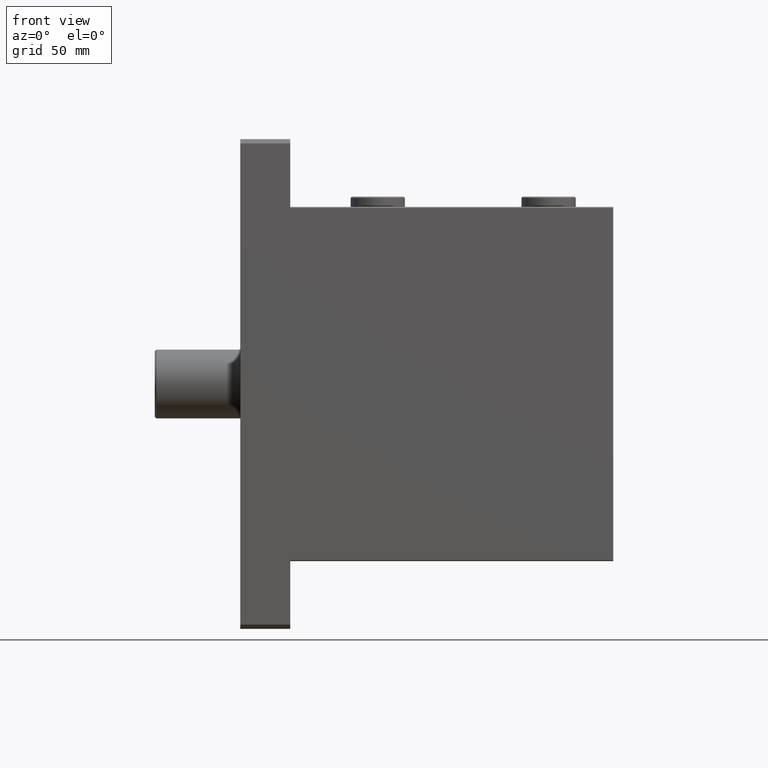
[diagram: clean part render]
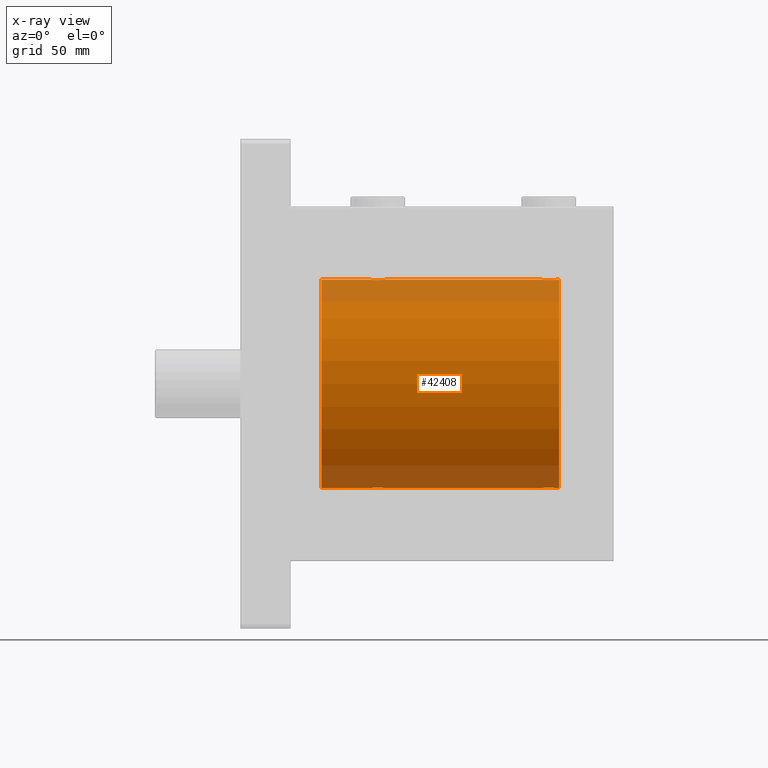
[diagram: x-ray — body ghosted, one internal face saturated and labeled with its STEP entity id]
A machine part, front view, then the same camera in x-ray: the body is ghosted and one INTERNAL B-rep face — a face not visible from any outside direction — is saturated and labeled: STEP entity #42408.
In plain terms, the highlighted cylindrical surface (partial cylindrical patch) has radius 50 mm, axis along (-1, -0, -0).
Its self-contained STEP definition (entity closure, byte-faithful):
#100 = CARTESIAN_POINT ( 'NONE',  ( 46.25000000000000000, 5.695507803017738218E-16, 50.00000000000000000 ) ) ;
#208 = CARTESIAN_POINT ( 'NONE',  ( 121.4068727911404437, -3.378657745070632767, 49.88595615988429444 ) ) ;
#453 = CARTESIAN_POINT ( 'NONE',  ( 127.6860283212194958, -2.133925816755182225, 49.95498245321556396 ) ) ;
#619 = CARTESIAN_POINT ( 'NONE',  ( 46.03272642097311973, -1.369753890039645983, -49.98188917176553048 ) ) ;
#652 = CARTESIAN_POINT ( 'NONE',  ( 126.8115306651541658, -3.199146701881681487, -49.89793607725462010 ) ) ;
#686 = CARTESIAN_POINT ( 'NONE',  ( 123.4400213230435099, -4.222042462213122072, 49.82145436824654183 ) ) ;
#854 = CARTESIAN_POINT ( 'NONE',  ( 39.41179785323799933, -3.382416624899781787, -49.88570010427956447 ) ) ;
#886 = CARTESIAN_POINT ( 'NONE',  ( 127.3788171726373548, -2.593114840406129940, -49.93325460257641168 ) ) ;
#1006 = B_SPLINE_CURVE_WITH_KNOTS ( 'NONE', 3,
 ( #22030, #15021, #30275, #33191, #22499, #44854, #25907, #36835, #41457, #18883, #208, #7979, #26629, #48006, #26387, #686, #37316, #15497, #44377, #3618, #30035, #22267, #15258, #33677, #40724, #3850, #11137, #453, #45092, #41206, #8224, #18401, #37800, #22752 ),
 .UNSPECIFIED., .F., .F.,
 ( 4, 2, 2, 2, 2, 2, 2, 2, 2, 2, 2, 2, 2, 2, 2, 2, 4 ),
 ( 0.01329343152928749543, 0.01412407817529626013, 0.01495472482130502483, 0.01578537146731378779, 0.01661601811332255249, 0.01744666475933131719, 0.01827731140534008189, 0.01910795805134884659, 0.01993860469735761129, 0.02076925134336637599, 0.02159989798937517885, 0.02243054463538398519, 0.02326119128139279152, 0.02409183792740159785, 0.02492248457341040419, 0.02575313121941921052, 0.02658377786542801685 ),
 .UNSPECIFIED. ) ;
#1829 = CARTESIAN_POINT ( 'NONE',  ( 129.0000000000000000, 0.000000000000000000, 50.00000000000000000 ) ) ;
#2035 = ORIENTED_EDGE ( 'NONE', *, *, #17101, .T. ) ;
#2095 = VERTEX_POINT ( 'NONE', #4279 ) ;
#2658 = ORIENTED_EDGE ( 'NONE', *, *, #44126, .F. ) ;
#2851 = CARTESIAN_POINT ( 'NONE',  ( 37.88568086693992143, -1.101350136471744845, 49.98862054280448319 ) ) ;
#3002 = EDGE_CURVE ( 'NONE', #2095, #11244, #23527, .T. ) ;
#3143 = CARTESIAN_POINT ( 'NONE',  ( 15.00000000000000000, 0.000000000000000000, 50.00000000000000000 ) ) ;
#3329 = CARTESIAN_POINT ( 'NONE',  ( 46.25000000000000000, 5.695507803017738218E-16, 50.00000000000000000 ) ) ;
#3549 = CARTESIAN_POINT ( 'NONE',  ( 38.31397167878049714, -2.133925816755183114, -49.95498245321557818 ) ) ;
#3567 = CARTESIAN_POINT ( 'NONE',  ( 38.31062844320614147, -2.128188802142369163, 49.95522967821975158 ) ) ;
#3618 = CARTESIAN_POINT ( 'NONE',  ( 125.0973761787903555, -4.115209769591107403, 49.83039196709103891 ) ) ;
#3816 = CARTESIAN_POINT ( 'NONE',  ( 120.6248001591803387, -2.597781786597479936, -49.93300953359122474 ) ) ;
#3850 = CARTESIAN_POINT ( 'NONE',  ( 127.1992192796128336, -2.811461347331102534, 49.92127983148852621 ) ) ;
#4026 = CARTESIAN_POINT ( 'NONE',  ( 40.63289352445426772, -4.033756670430848068, -49.83713703490974467 ) ) ;
#4279 = CARTESIAN_POINT ( 'NONE',  ( 119.7499999999999858, -1.552464266337571260E-14, -50.00000000000000000 ) ) ;
#4309 = CARTESIAN_POINT ( 'NONE',  ( 119.7775736447921986, -0.5587117664567315956, -49.99763378604802000 ) ) ;
#4511 = CARTESIAN_POINT ( 'NONE',  ( 46.25000000000000000, 6.123233970928580774E-15, -50.00000000000000000 ) ) ;
#4544 = CARTESIAN_POINT ( 'NONE',  ( 120.8007807203871522, -2.811461347331123406, -49.92127983148851200 ) ) ;
#4784 = CARTESIAN_POINT ( 'NONE',  ( 124.5599786769564474, -4.222042462213132730, -49.82145436824653473 ) ) ;
#4848 = CARTESIAN_POINT ( 'NONE',  ( 15.00000000000000000, 6.123233995736766085E-15, -50.00000000000000000 ) ) ;
#5118 = DIRECTION ( 'NONE',  ( -1.000000000000000000, -0.000000000000000000, -0.000000000000000000 ) ) ;
#5222 = VERTEX_POINT ( 'NONE', #11470 ) ;
#6249 = CARTESIAN_POINT ( 'NONE',  ( 43.88217049484443777, -3.820681512513388611, 49.85392475515401145 ) ) ;
#6284 = DIRECTION ( 'NONE',  ( -1.000000000000000000, 0.000000000000000000, 0.000000000000000000 ) ) ;
#6397 = VECTOR ( 'NONE', #14324, 1000.000000000000000 ) ;
#6496 = CARTESIAN_POINT ( 'NONE',  ( 43.36710647554575360, -4.033756670430856062, 49.83713703490974467 ) ) ;
#6564 = CARTESIAN_POINT ( 'NONE',  ( 129.0000000000000000, 6.123233995736766085E-15, -50.00000000000000000 ) ) ;
#6612 = AXIS2_PLACEMENT_3D ( 'NONE', #34684, #46815, #20593 ) ;
#7192 = CARTESIAN_POINT ( 'NONE',  ( 38.80078072038717352, -2.811461347331107419, -49.92127983148852621 ) ) ;
#7473 = CIRCLE ( 'NONE', #25255, 50.00000000000000000 ) ;
#7522 = CARTESIAN_POINT ( 'NONE',  ( 128.2499999999999716, 4.902412868109812945E-15, 50.00000000000000000 ) ) ;
#7617 = EDGE_CURVE ( 'NONE', #10814, #37933, #1006, .T. ) ;
#7666 = CARTESIAN_POINT ( 'NONE',  ( 39.87368355124922203, -3.690299572754720980, -49.86386974736159772 ) ) ;
#7945 = CARTESIAN_POINT ( 'NONE',  ( 125.1032329603421545, -4.113647494206490229, -49.83052139214891696 ) ) ;
#7979 = CARTESIAN_POINT ( 'NONE',  ( 121.8686360055384768, -3.687400765141539249, 49.86408552998300081 ) ) ;
#8188 = CARTESIAN_POINT ( 'NONE',  ( 127.2030356195199232, -2.807099414226285727, -49.92152599098507437 ) ) ;
#8224 = CARTESIAN_POINT ( 'NONE',  ( 128.1124970108033096, -1.108337267831486006, 49.98846998601263181 ) ) ;
#9758 = EDGE_CURVE ( 'NONE', #47364, #37933, #33044, .T. ) ;
#10135 = CARTESIAN_POINT ( 'NONE',  ( 45.81839248987871827, -1.886522330773423572, 49.96505190380066352 ) ) ;
#10375 = CARTESIAN_POINT ( 'NONE',  ( 42.55408564880149669, -4.222816005855214883, 49.82138837911247009 ) ) ;
#10609 = CARTESIAN_POINT ( 'NONE',  ( 45.68602832121950286, -2.133925816755187110, 49.95498245321557818 ) ) ;
#10814 = VERTEX_POINT ( 'NONE', #28927 ) ;
#11137 = CARTESIAN_POINT ( 'NONE',  ( 127.3751998408196329, -2.597781786597467057, 49.93300953359122474 ) ) ;
#11244 = VERTEX_POINT ( 'NONE', #46298 ) ;
#11307 = CARTESIAN_POINT ( 'NONE',  ( 41.44591435119853173, -4.222816005855206001, -49.82138837911246299 ) ) ;
#11339 = CARTESIAN_POINT ( 'NONE',  ( 119.7499999999999858, -1.552464266337571260E-14, -50.00000000000000000 ) ) ;
#11470 = CARTESIAN_POINT ( 'NONE',  ( 37.75000000000000711, -7.073857814331912646E-15, -50.00000000000000000 ) ) ;
#11515 = DIRECTION ( 'NONE',  ( 0.000000000000000000, 0.000000000000000000, 1.000000000000000000 ) ) ;
#11789 = CARTESIAN_POINT ( 'NONE',  ( 42.28395287026698668, -4.249777379711400904, -49.81906655360197789 ) ) ;
#12059 = CARTESIAN_POINT ( 'NONE',  ( 119.9692020384465678, -1.375411031076060997, -49.98173289062309976 ) ) ;
#12501 = VECTOR ( 'NONE', #20023, 1000.000000000000000 ) ;
#12526 = LINE ( 'NONE', #1829, #12501 ) ;
#13537 = CARTESIAN_POINT ( 'NONE',  ( 37.75000000000001421, -0.2773743941468532759, 50.00000000000000711 ) ) ;
#13807 = DIRECTION ( 'NONE',  ( 0.000000000000000000, 0.000000000000000000, 1.000000000000000000 ) ) ;
#14016 = CARTESIAN_POINT ( 'NONE',  ( 46.03079796155342507, -1.375411031076046786, 49.98173289062309976 ) ) ;
#14260 = CARTESIAN_POINT ( 'NONE',  ( 43.09737617879038396, -4.115209769591117173, 49.83039196709102470 ) ) ;
#14324 = DIRECTION ( 'NONE',  ( -1.000000000000000000, -0.000000000000000000, -0.000000000000000000 ) ) ;
#14458 = LINE ( 'NONE', #17598, #30792 ) ;
#14714 = CARTESIAN_POINT ( 'NONE',  ( 37.77757364479220570, -0.5587117664567219366, -49.99763378604802000 ) ) ;
#14954 = CARTESIAN_POINT ( 'NONE',  ( 44.13136399446156588, -3.687400765141522818, -49.86408552998298660 ) ) ;
#14986 = CARTESIAN_POINT ( 'NONE',  ( 123.4459143511985246, -4.222816005855221100, -49.82138837911247009 ) ) ;
#15021 = CARTESIAN_POINT ( 'NONE',  ( 119.7500000000000000, -0.2773743941468521657, 50.00000000000001421 ) ) ;
#15258 = CARTESIAN_POINT ( 'NONE',  ( 126.1263164487507709, -3.690299572754721869, 49.86386974736159061 ) ) ;
#15426 = CARTESIAN_POINT ( 'NONE',  ( 44.59312720885956338, -3.378657745070617224, -49.88595615988430154 ) ) ;
#15460 = CARTESIAN_POINT ( 'NONE',  ( 127.6893715567938585, -2.128188802142362945, -49.95522967821975158 ) ) ;
#15497 = CARTESIAN_POINT ( 'NONE',  ( 124.2772492703791727, -4.250219976861645321, 49.81902879621014790 ) ) ;
#15694 = CARTESIAN_POINT ( 'NONE',  ( 119.7499999999999858, -0.2808785465865775155, -50.00000000000001421 ) ) ;
#16358 = EDGE_CURVE ( 'NONE', #5222, #21201, #21806, .T. ) ;
#16812 = CARTESIAN_POINT ( 'NONE',  ( 129.0000000000000000, 6.123233995736766085E-15, -50.00000000000000000 ) ) ;
#17101 = EDGE_CURVE ( 'NONE', #21201, #32330, #35854, .T. ) ;
#17598 = CARTESIAN_POINT ( 'NONE',  ( 129.0000000000000000, 0.000000000000000000, 50.00000000000000000 ) ) ;
#17875 = CARTESIAN_POINT ( 'NONE',  ( 39.40687279114045083, -3.378657745070629659, 49.88595615988430154 ) ) ;
#18018 = AXIS2_PLACEMENT_3D ( 'NONE', #29223, #44033, #11515 ) ;
#18339 = CARTESIAN_POINT ( 'NONE',  ( 38.18160751012128884, -1.886522330773416911, -49.96505190380066352 ) ) ;
#18401 = CARTESIAN_POINT ( 'NONE',  ( 128.2224263552077730, -0.5587117664567089470, 49.99763378604803421 ) ) ;
#18569 = CARTESIAN_POINT ( 'NONE',  ( 45.82100581985226739, -1.881229021238118859, -49.96525240872482954 ) ) ;
#18603 = CARTESIAN_POINT ( 'NONE',  ( 119.8875029891966335, -1.108337267831507766, -49.98846998601261760 ) ) ;
#18814 = CARTESIAN_POINT ( 'NONE',  ( 46.11431913306007857, -1.101350136471736629, -49.98862054280448319 ) ) ;
#18883 = CARTESIAN_POINT ( 'NONE',  ( 121.1884693348457915, -3.199146701881667276, 49.89793607725462010 ) ) ;
#19292 = CARTESIAN_POINT ( 'NONE',  ( 45.68937155679385853, -2.128188802142358949, -49.95522967821975158 ) ) ;
#19328 = CARTESIAN_POINT ( 'NONE',  ( 120.3139716787804758, -2.133925816755196880, -49.95498245321555686 ) ) ;
#19560 = CARTESIAN_POINT ( 'NONE',  ( 124.2839528702669725, -4.249777379711414227, -49.81906655360197789 ) ) ;
#19584 = VECTOR ( 'NONE', #29926, 1000.000000000000000 ) ;
#20023 = DIRECTION ( 'NONE',  ( -1.000000000000000000, -0.000000000000000000, -0.000000000000000000 ) ) ;
#20154 = EDGE_LOOP ( 'NONE', ( #2658, #40343, #25957, #28978, #45268, #36498, #2035, #30746, #40815, #30920, #34795, #20714 ) ) ;
#20593 = DIRECTION ( 'NONE',  ( 0.000000000000000000, 0.000000000000000000, 1.000000000000000000 ) ) ;
#20714 = ORIENTED_EDGE ( 'NONE', *, *, #9758, .F. ) ;
#21201 = VERTEX_POINT ( 'NONE', #4848 ) ;
#21744 = CARTESIAN_POINT ( 'NONE',  ( 40.11255260607201478, -3.818052230167724215, 49.85412671291930309 ) ) ;
#21806 = LINE ( 'NONE', #6564, #6397 ) ;
#21966 = CARTESIAN_POINT ( 'NONE',  ( 38.62480015918034582, -2.597781786597465725, -49.93300953359122474 ) ) ;
#22030 = CARTESIAN_POINT ( 'NONE',  ( 119.7500000000000000, -2.480297015150644268E-23, 50.00000000000000000 ) ) ;
#22267 = CARTESIAN_POINT ( 'NONE',  ( 125.8821704948444022, -3.820681512513372624, 49.85392475515399724 ) ) ;
#22499 = CARTESIAN_POINT ( 'NONE',  ( 119.9672735790268376, -1.369753890039655975, 49.98188917176552337 ) ) ;
#22714 = CARTESIAN_POINT ( 'NONE',  ( 121.8736835512492149, -3.690299572754727642, -49.86386974736159772 ) ) ;
#22752 = CARTESIAN_POINT ( 'NONE',  ( 128.2499999999999716, 4.902412868109812945E-15, 50.00000000000000000 ) ) ;
#22953 = CARTESIAN_POINT ( 'NONE',  ( 122.6328935244542606, -4.033756670430865832, -49.83713703490974467 ) ) ;
#23189 = CARTESIAN_POINT ( 'NONE',  ( 126.1313639944615659, -3.687400765141528591, -49.86408552998298660 ) ) ;
#23527 = LINE ( 'NONE', #38333, #27730 ) ;
#24658 = CARTESIAN_POINT ( 'NONE',  ( 46.25000000000001421, -0.2808785465865648034, 50.00000000000001421 ) ) ;
#25152 = CARTESIAN_POINT ( 'NONE',  ( 44.80697831839309941, -3.203153387937326180, 49.89767833571684719 ) ) ;
#25255 = AXIS2_PLACEMENT_3D ( 'NONE', #39503, #6284, #13807 ) ;
#25385 = CARTESIAN_POINT ( 'NONE',  ( 46.22242635520780851, -0.5587117664567118336, 49.99763378604802000 ) ) ;
#25602 = CARTESIAN_POINT ( 'NONE',  ( 44.81153066515419425, -3.199146701881665500, -49.89793607725460589 ) ) ;
#25619 = CARTESIAN_POINT ( 'NONE',  ( 41.44002132304353125, -4.222042462213131842, 49.82145436824653473 ) ) ;
#25907 = CARTESIAN_POINT ( 'NONE',  ( 120.3106284432061273, -2.128188802142369163, 49.95522967821973737 ) ) ;
#25957 = ORIENTED_EDGE ( 'NONE', *, *, #33183, .T. ) ;
#26083 = CARTESIAN_POINT ( 'NONE',  ( 40.11782950515556934, -3.820681512513381506, -49.85392475515401145 ) ) ;
#26114 = CARTESIAN_POINT ( 'NONE',  ( 128.2231075279900381, -0.5531336717328986241, -49.99769193709643389 ) ) ;
#26387 = CARTESIAN_POINT ( 'NONE',  ( 122.8967670396578598, -4.113647494206484012, 49.83052139214893117 ) ) ;
#26561 = CARTESIAN_POINT ( 'NONE',  ( 46.25000000000000000, -0.2773743941468464480, -50.00000000000000711 ) ) ;
#26595 = CARTESIAN_POINT ( 'NONE',  ( 123.7227507296208415, -4.250219976861655979, -49.81902879621013369 ) ) ;
#26629 = CARTESIAN_POINT ( 'NONE',  ( 122.1125526060720148, -3.818052230167721994, 49.85412671291930309 ) ) ;
#26712 = VERTEX_POINT ( 'NONE', #31348 ) ;
#27730 = VECTOR ( 'NONE', #5118, 1000.000000000000000 ) ;
#27929 = EDGE_CURVE ( 'NONE', #26712, #28402, #43673, .T. ) ;
#28402 = VERTEX_POINT ( 'NONE', #100 ) ;
#28927 = CARTESIAN_POINT ( 'NONE',  ( 119.7500000000000000, -2.480297015150644268E-23, 50.00000000000000000 ) ) ;
#28978 = ORIENTED_EDGE ( 'NONE', *, *, #3002, .T. ) ;
#29031 = CARTESIAN_POINT ( 'NONE',  ( 45.37519984081967550, -2.597781786597470610, 49.93300953359122474 ) ) ;
#29214 = EDGE_CURVE ( 'NONE', #26712, #32330, #12526, .T. ) ;
#29223 = CARTESIAN_POINT ( 'NONE',  ( 15.00000000000000000, 0.000000000000000000, 0.000000000000000000 ) ) ;
#29268 = CARTESIAN_POINT ( 'NONE',  ( 46.11249701080335228, -1.108337267831489115, 49.98846998601261760 ) ) ;
#29444 = LINE ( 'NONE', #44267, #19584 ) ;
#29505 = CARTESIAN_POINT ( 'NONE',  ( 38.17899418014773971, -1.881229021238130183, 49.96525240872482954 ) ) ;
#29734 = CARTESIAN_POINT ( 'NONE',  ( 43.37333436579036317, -4.031616700143180410, -49.83731072121798888 ) ) ;
#29765 = CARTESIAN_POINT ( 'NONE',  ( 128.1143191330600359, -1.101350136471738850, -49.98862054280448319 ) ) ;
#29926 = DIRECTION ( 'NONE',  ( -1.000000000000000000, -0.000000000000000000, -0.000000000000000000 ) ) ;
#30035 = CARTESIAN_POINT ( 'NONE',  ( 125.3671064755457536, -4.033756670430841851, 49.83713703490973757 ) ) ;
#30210 = CARTESIAN_POINT ( 'NONE',  ( 42.55997867695648296, -4.222042462213118519, -49.82145436824653473 ) ) ;
#30239 = CARTESIAN_POINT ( 'NONE',  ( 126.5931272088595705, -3.378657745070619445, -49.88595615988430154 ) ) ;
#30275 = CARTESIAN_POINT ( 'NONE',  ( 119.7768924720099903, -0.5531336717329051744, 49.99769193709643389 ) ) ;
#30479 = CARTESIAN_POINT ( 'NONE',  ( 127.8210058198522603, -1.881229021238124632, -49.96525240872482954 ) ) ;
#30746 = ORIENTED_EDGE ( 'NONE', *, *, #29214, .F. ) ;
#30792 = VECTOR ( 'NONE', #39918, 1000.000000000000000 ) ;
#30920 = ORIENTED_EDGE ( 'NONE', *, *, #47330, .F. ) ;
#31348 = CARTESIAN_POINT ( 'NONE',  ( 37.75000000000000711, -2.480809774739037926E-23, 50.00000000000000000 ) ) ;
#31451 = EDGE_CURVE ( 'NONE', #11244, #5222, #33639, .T. ) ;
#31508 = FACE_OUTER_BOUND ( 'NONE', #20154, .T. ) ;
#31991 = CYLINDRICAL_SURFACE ( 'NONE', #6612, 50.00000000000000000 ) ;
#32189 = CARTESIAN_POINT ( 'NONE',  ( 40.89676703965783844, -4.113647494206490229, 49.83052139214891696 ) ) ;
#32330 = VERTEX_POINT ( 'NONE', #3143 ) ;
#32671 = CARTESIAN_POINT ( 'NONE',  ( 40.62666563420963683, -4.031616700143192844, 49.83731072121799599 ) ) ;
#33044 = LINE ( 'NONE', #44704, #38039 ) ;
#33129 = CARTESIAN_POINT ( 'NONE',  ( 37.96920203844656783, -1.375411031076042789, -49.98173289062309976 ) ) ;
#33146 = CARTESIAN_POINT ( 'NONE',  ( 42.27724927037917979, -4.250219976861652427, 49.81902879621013369 ) ) ;
#33183 = EDGE_CURVE ( 'NONE', #38785, #2095, #42237, .T. ) ;
#33191 = CARTESIAN_POINT ( 'NONE',  ( 119.8856808669399072, -1.101350136471743735, 49.98862054280448319 ) ) ;
#33361 = CARTESIAN_POINT ( 'NONE',  ( 45.20303561951990901, -2.807099414226270184, -49.92152599098507437 ) ) ;
#33393 = CARTESIAN_POINT ( 'NONE',  ( 128.2500000000000000, -0.2773743941468452823, -50.00000000000000711 ) ) ;
#33588 = CARTESIAN_POINT ( 'NONE',  ( 129.0000000000000000, 0.000000000000000000, 50.00000000000000000 ) ) ;
#33611 = CARTESIAN_POINT ( 'NONE',  ( 39.19302168160691480, -3.203153387937319962, -49.89767833571684719 ) ) ;
#33639 = B_SPLINE_CURVE_WITH_KNOTS ( 'NONE', 3,
 ( #4511, #26561, #36770, #18814, #619, #18569, #19292, #37251, #33361, #25602, #15426, #14954, #40412, #29734, #44556, #30210, #11789, #34085, #11307, #41386, #4026, #26083, #7666, #854, #33611, #7192, #21966, #3549, #18339, #33129, #47939, #14714, #41625, #42096 ),
 .UNSPECIFIED., .F., .F.,
 ( 4, 2, 2, 2, 2, 2, 2, 2, 2, 2, 2, 2, 2, 2, 2, 2, 4 ),
 ( 0.01329343152928756308, 0.01412407817529634686, 0.01495472482130513064, 0.01578537146731391269, 0.01661601811332269821, 0.01744666475933148025, 0.01827731140534026577, 0.01910795805134904782, 0.01993860469735782986, 0.02076925134336661538, 0.02159989798937540090, 0.02243054463538418294, 0.02326119128139296499, 0.02409183792740175051, 0.02492248457341053255, 0.02575313121941931460, 0.02658377786542810012 ),
 .UNSPECIFIED. ) ;
#33643 = CARTESIAN_POINT ( 'NONE',  ( 128.2500000000000000, 6.123233970923453178E-15, -50.00000000000000000 ) ) ;
#33677 = CARTESIAN_POINT ( 'NONE',  ( 126.5882021467620007, -3.382416624899781787, 49.88570010427956447 ) ) ;
#34085 = CARTESIAN_POINT ( 'NONE',  ( 41.72275072962083442, -4.250219976861640880, -49.81902879621014080 ) ) ;
#34684 = CARTESIAN_POINT ( 'NONE',  ( 129.0000000000000000, 0.000000000000000000, 0.000000000000000000 ) ) ;
#34795 = ORIENTED_EDGE ( 'NONE', *, *, #7617, .T. ) ;
#35854 = CIRCLE ( 'NONE', #18018, 50.00000000000000000 ) ;
#36219 = CARTESIAN_POINT ( 'NONE',  ( 128.2500000000000000, 6.123233970923453178E-15, -50.00000000000000000 ) ) ;
#36498 = ORIENTED_EDGE ( 'NONE', *, *, #16358, .T. ) ;
#36546 = CARTESIAN_POINT ( 'NONE',  ( 45.19921927961282648, -2.811461347331111416, 49.92127983148852621 ) ) ;
#36662 = EDGE_CURVE ( 'NONE', #38666, #38785, #29444, .T. ) ;
#36770 = CARTESIAN_POINT ( 'NONE',  ( 46.22310752799000966, -0.5531336717328987351, -49.99769193709643389 ) ) ;
#36835 = CARTESIAN_POINT ( 'NONE',  ( 120.6211828273626026, -2.593114840406131716, 49.93325460257638326 ) ) ;
#37033 = CARTESIAN_POINT ( 'NONE',  ( 128.0327264209731197, -1.369753890039650202, -49.98188917176553048 ) ) ;
#37251 = CARTESIAN_POINT ( 'NONE',  ( 45.37881717263736192, -2.593114840406122390, -49.93325460257641168 ) ) ;
#37316 = CARTESIAN_POINT ( 'NONE',  ( 123.7160471297329991, -4.249777379711403569, 49.81906655360197789 ) ) ;
#37531 = CARTESIAN_POINT ( 'NONE',  ( 122.1178295051555551, -3.820681512513399269, -49.85392475515401145 ) ) ;
#37767 = CARTESIAN_POINT ( 'NONE',  ( 121.1930216816068935, -3.203153387937336394, -49.89767833571684719 ) ) ;
#37800 = CARTESIAN_POINT ( 'NONE',  ( 128.2500000000000284, -0.2808785465865650810, 50.00000000000002132 ) ) ;
#37933 = VERTEX_POINT ( 'NONE', #7522 ) ;
#38000 = CARTESIAN_POINT ( 'NONE',  ( 125.3733343657903418, -4.031616700143195509, -49.83731072121799599 ) ) ;
#38039 = VECTOR ( 'NONE', #44468, 1000.000000000000000 ) ;
#38333 = CARTESIAN_POINT ( 'NONE',  ( 129.0000000000000000, 6.123233995736766085E-15, -50.00000000000000000 ) ) ;
#38666 = VERTEX_POINT ( 'NONE', #16812 ) ;
#38785 = VERTEX_POINT ( 'NONE', #36219 ) ;
#39503 = CARTESIAN_POINT ( 'NONE',  ( 129.0000000000000000, 0.000000000000000000, 0.000000000000000000 ) ) ;
#39713 = CARTESIAN_POINT ( 'NONE',  ( 39.86863600553844122, -3.687400765141535253, 49.86408552998298660 ) ) ;
#39918 = DIRECTION ( 'NONE',  ( -1.000000000000000000, -0.000000000000000000, -0.000000000000000000 ) ) ;
#40187 = CARTESIAN_POINT ( 'NONE',  ( 38.79696438048009099, -2.807099414226281731, 49.92152599098507437 ) ) ;
#40343 = ORIENTED_EDGE ( 'NONE', *, *, #36662, .T. ) ;
#40412 = CARTESIAN_POINT ( 'NONE',  ( 43.88744739392799943, -3.818052230167712668, -49.85412671291930309 ) ) ;
#40428 = CARTESIAN_POINT ( 'NONE',  ( 37.77689247201000455, -0.5531336717329051744, 49.99769193709643389 ) ) ;
#40724 = CARTESIAN_POINT ( 'NONE',  ( 126.8069783183931065, -3.203153387937318186, 49.89767833571684008 ) ) ;
#40815 = ORIENTED_EDGE ( 'NONE', *, *, #27929, .T. ) ;
#41206 = CARTESIAN_POINT ( 'NONE',  ( 128.0307979615534464, -1.375411031076037460, 49.98173289062309976 ) ) ;
#41386 = CARTESIAN_POINT ( 'NONE',  ( 40.90262382120964446, -4.115209769591110067, -49.83039196709102470 ) ) ;
#41419 = CARTESIAN_POINT ( 'NONE',  ( 122.9026238212096303, -4.115209769591122502, -49.83039196709102470 ) ) ;
#41457 = CARTESIAN_POINT ( 'NONE',  ( 120.7969643804801052, -2.807099414226272405, 49.92152599098507437 ) ) ;
#41625 = CARTESIAN_POINT ( 'NONE',  ( 37.75000000000001421, -0.2808785465865695774, -50.00000000000001421 ) ) ;
#41657 = CARTESIAN_POINT ( 'NONE',  ( 120.1816075101212675, -1.886522330773437339, -49.96505190380065642 ) ) ;
#42096 = CARTESIAN_POINT ( 'NONE',  ( 37.75000000000000711, -7.073857814331912646E-15, -50.00000000000000000 ) ) ;
#42178 = CARTESIAN_POINT ( 'NONE',  ( 37.75000000000000711, -2.480809774739037926E-23, 50.00000000000000000 ) ) ;
#42237 = B_SPLINE_CURVE_WITH_KNOTS ( 'NONE', 3,
 ( #33643, #33393, #26114, #29765, #37033, #30479, #15460, #886, #8188, #652, #30239, #23189, #45056, #38000, #7945, #4784, #19560, #26595, #14986, #41419, #22953, #37531, #22714, #44586, #37767, #4544, #3816, #19328, #41657, #12059, #18603, #4309, #15694, #11339 ),
 .UNSPECIFIED., .F., .F.,
 ( 4, 2, 2, 2, 2, 2, 2, 2, 2, 2, 2, 2, 2, 2, 2, 2, 4 ),
 ( 0.01329343152928756308, 0.01412407817529634686, 0.01495472482130513238, 0.01578537146731391616, 0.01661601811332270168, 0.01744666475933148719, 0.01827731140534026924, 0.01910795805134905476, 0.01993860469735783680, 0.02076925134336662232, 0.02159989798937540784, 0.02243054463538419335, 0.02326119128139297540, 0.02409183792740176092, 0.02492248457341054296, 0.02575313121941932848, 0.02658377786542811400 ),
 .UNSPECIFIED. ) ;
#42408 = ADVANCED_FACE ( 'NONE', ( #31508 ), #31991, .F. ) ;
#43673 = B_SPLINE_CURVE_WITH_KNOTS ( 'NONE', 3,
 ( #42178, #13537, #40428, #2851, #44325, #29505, #3567, #47005, #40187, #47486, #17875, #39713, #21744, #32671, #32189, #25619, #47246, #33146, #10375, #14260, #6496, #6249, #47721, #43850, #25152, #36546, #29031, #10609, #10135, #14016, #29268, #25385, #24658, #3329 ),
 .UNSPECIFIED., .F., .F.,
 ( 4, 2, 2, 2, 2, 2, 2, 2, 2, 2, 2, 2, 2, 2, 2, 2, 4 ),
 ( 0.01329343152928754226, 0.01412407817529632605, 0.01495472482130511156, 0.01578537146731389534, 0.01661601811332268086, 0.01744666475933146638, 0.01827731140534024842, 0.01910795805134903394, 0.01993860469735781599, 0.02076925134336660150, 0.02159989798937538702, 0.02243054463538417254, 0.02326119128139295458, 0.02409183792740174010, 0.02492248457341052215, 0.02575313121941930766, 0.02658377786542809318 ),
 .UNSPECIFIED. ) ;
#43850 = CARTESIAN_POINT ( 'NONE',  ( 44.58820214676200777, -3.382416624899783564, 49.88570010427956447 ) ) ;
#44033 = DIRECTION ( 'NONE',  ( -1.000000000000000000, 0.000000000000000000, 0.000000000000000000 ) ) ;
#44126 = EDGE_CURVE ( 'NONE', #38666, #47364, #7473, .T. ) ;
#44267 = CARTESIAN_POINT ( 'NONE',  ( 129.0000000000000000, 6.123233995736766085E-15, -50.00000000000000000 ) ) ;
#44325 = CARTESIAN_POINT ( 'NONE',  ( 37.96727357902688738, -1.369753890039657085, 49.98188917176553048 ) ) ;
#44377 = CARTESIAN_POINT ( 'NONE',  ( 124.5540856488014754, -4.222816005855207777, 49.82138837911247720 ) ) ;
#44468 = DIRECTION ( 'NONE',  ( -1.000000000000000000, -0.000000000000000000, -0.000000000000000000 ) ) ;
#44556 = CARTESIAN_POINT ( 'NONE',  ( 43.10323296034216156, -4.113647494206476907, -49.83052139214892406 ) ) ;
#44586 = CARTESIAN_POINT ( 'NONE',  ( 121.4117978532379709, -3.382416624899787561, -49.88570010427956447 ) ) ;
#44704 = CARTESIAN_POINT ( 'NONE',  ( 129.0000000000000000, 0.000000000000000000, 50.00000000000000000 ) ) ;
#44854 = CARTESIAN_POINT ( 'NONE',  ( 120.1789941801477539, -1.881229021238129073, 49.96525240872482243 ) ) ;
#45056 = CARTESIAN_POINT ( 'NONE',  ( 125.8874473939280136, -3.818052230167727323, -49.85412671291929598 ) ) ;
#45092 = CARTESIAN_POINT ( 'NONE',  ( 127.8183924898787183, -1.886522330773413358, 49.96505190380066352 ) ) ;
#45268 = ORIENTED_EDGE ( 'NONE', *, *, #31451, .T. ) ;
#46298 = CARTESIAN_POINT ( 'NONE',  ( 46.25000000000000000, 6.123233970928580774E-15, -50.00000000000000000 ) ) ;
#46815 = DIRECTION ( 'NONE',  ( -1.000000000000000000, -0.000000000000000000, -0.000000000000000000 ) ) ;
#47005 = CARTESIAN_POINT ( 'NONE',  ( 38.62118282736263097, -2.593114840406133492, 49.93325460257641168 ) ) ;
#47246 = CARTESIAN_POINT ( 'NONE',  ( 41.71604712973302753, -4.249777379711412451, 49.81906655360197789 ) ) ;
#47330 = EDGE_CURVE ( 'NONE', #10814, #28402, #14458, .T. ) ;
#47364 = VERTEX_POINT ( 'NONE', #33588 ) ;
#47486 = CARTESIAN_POINT ( 'NONE',  ( 39.18846933484581285, -3.199146701881677934, 49.89793607725460589 ) ) ;
#47721 = CARTESIAN_POINT ( 'NONE',  ( 44.12631644875080639, -3.690299572754724533, 49.86386974736159772 ) ) ;
#47939 = CARTESIAN_POINT ( 'NONE',  ( 37.88750298919666903, -1.108337267831496886, -49.98846998601261760 ) ) ;
#48006 = CARTESIAN_POINT ( 'NONE',  ( 122.6266656342096582, -4.031616700143189291, 49.83731072121800310 ) ) ;